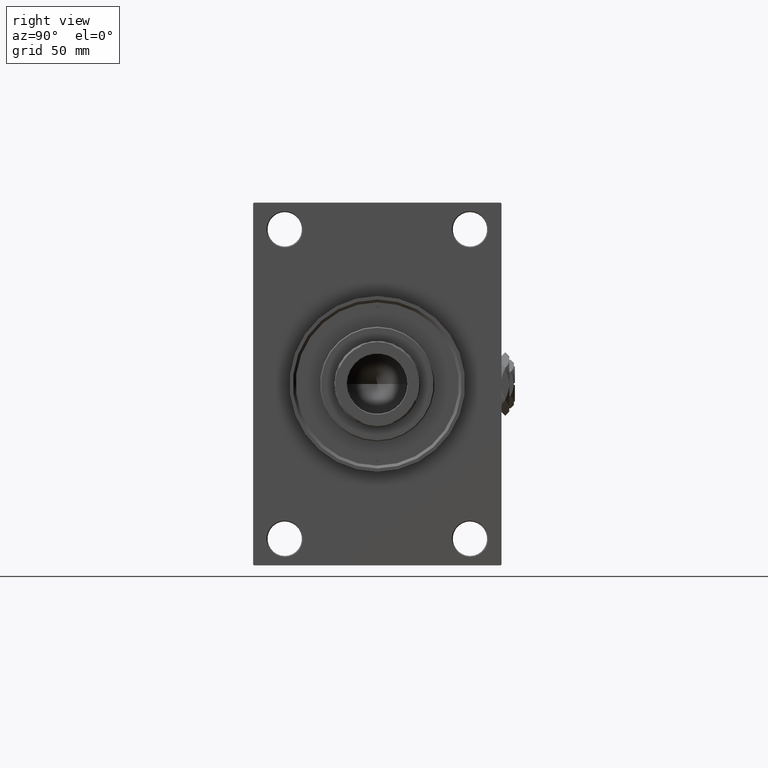
[diagram: clean part render]
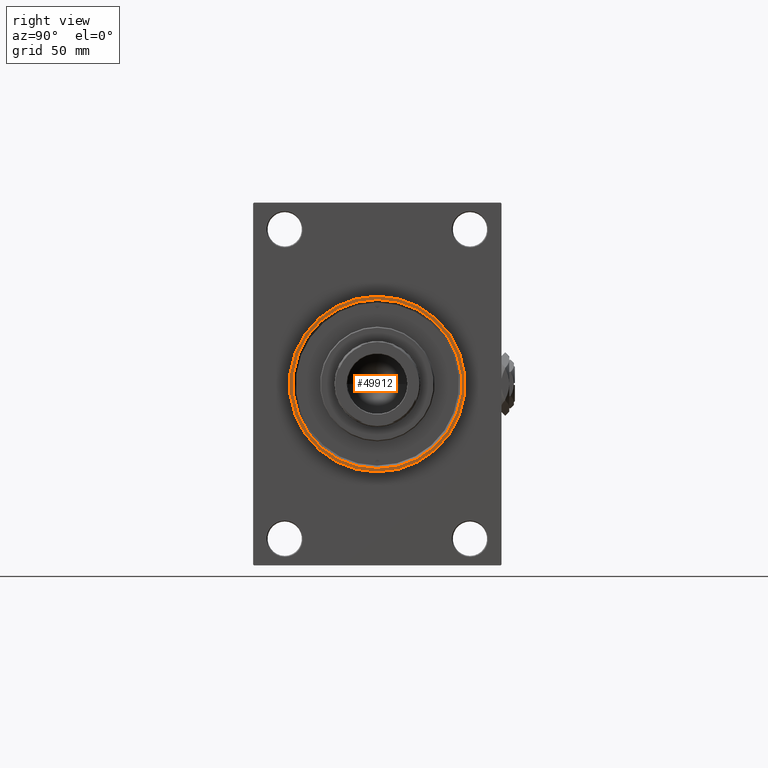
[diagram: same view with one face highlighted and labeled with its STEP entity id]
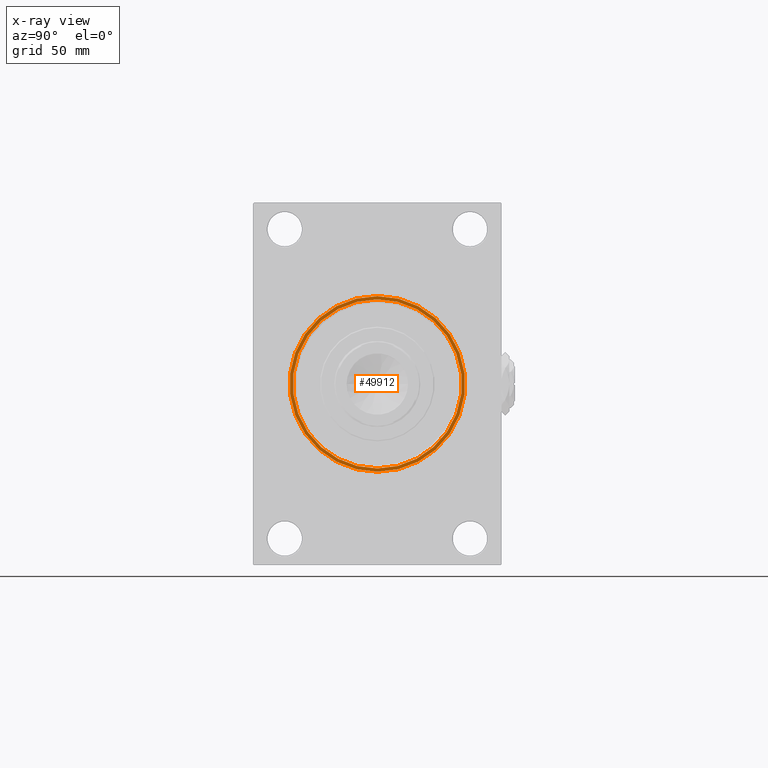
[diagram: x-ray of the same camera — body ghosted, the highlighted face saturated]
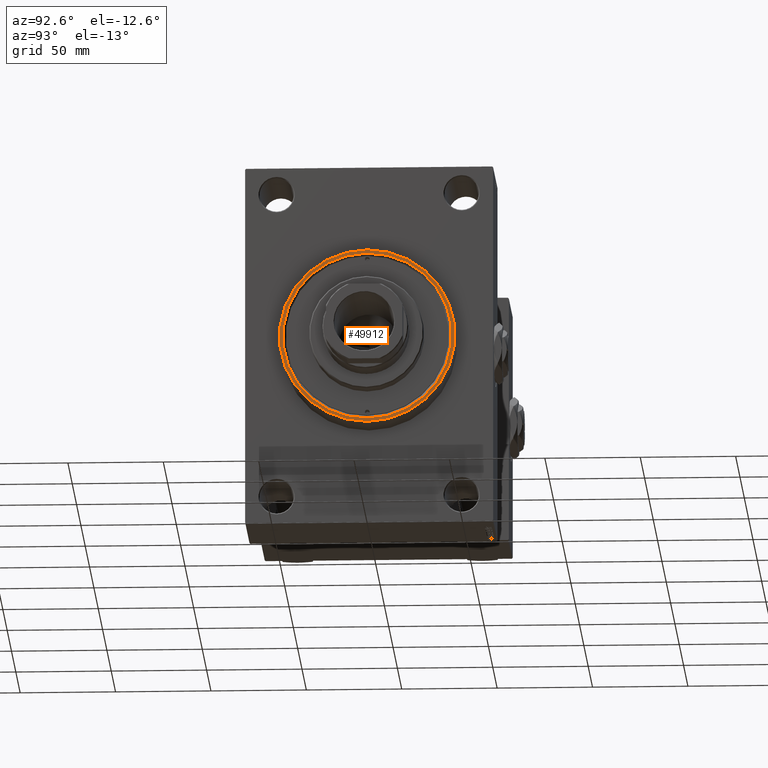
[diagram: same view with one face highlighted and labeled with its STEP entity id]
A machine part, right view. The second image highlights one B-rep face of the part: STEP entity #49912.
The next image is the same camera in x-ray: the body ghosted, the highlighted face saturated — about 0% of this face is hidden behind the body in this view.
A second angle (auxiliary view) of the same face is appended — the face is thin or edge-on in the first view.
In plain terms, the highlighted planar face has unit normal (1, 0, 0).
Its self-contained STEP definition (entity closure, byte-faithful):
#45 = DIRECTION ( 'NONE',  ( 1.000000000000000000, 0.000000000000000000, 0.000000000000000000 ) ) ;
#657 = EDGE_CURVE ( 'NONE', #39268, #28374, #45616, .T. ) ;
#1226 = CARTESIAN_POINT ( 'NONE',  ( 247.9999999999999716, 5.633375276077824704E-15, -46.00000000000000000 ) ) ;
#2595 = DIRECTION ( 'NONE',  ( -1.000000000000000000, -0.000000000000000000, -0.000000000000000000 ) ) ;
#3846 = DIRECTION ( 'NONE',  ( 0.000000000000000000, 0.000000000000000000, -1.000000000000000000 ) ) ;
#4172 = CARTESIAN_POINT ( 'NONE',  ( 247.9999999999999716, 0.000000000000000000, -44.24999999999998579 ) ) ;
#7150 = FACE_BOUND ( 'NONE', #36835, .T. ) ;
#7225 = DIRECTION ( 'NONE',  ( 0.000000000000000000, 0.000000000000000000, -1.000000000000000000 ) ) ;
#7786 = DIRECTION ( 'NONE',  ( 0.000000000000000000, 0.000000000000000000, -1.000000000000000000 ) ) ;
#8605 = ORIENTED_EDGE ( 'NONE', *, *, #40330, .T. ) ;
#9112 = AXIS2_PLACEMENT_3D ( 'NONE', #26385, #2595, #41796 ) ;
#10819 = EDGE_CURVE ( 'NONE', #48233, #21998, #43830, .T. ) ;
#14045 = CARTESIAN_POINT ( 'NONE',  ( 247.9999999999999716, 0.000000000000000000, 0.000000000000000000 ) ) ;
#14477 = CARTESIAN_POINT ( 'NONE',  ( 247.9999999999999716, 0.000000000000000000, 0.000000000000000000 ) ) ;
#16370 = CARTESIAN_POINT ( 'NONE',  ( 247.9999999999999716, 5.419062086227035828E-15, 44.24999999999998579 ) ) ;
#16487 = CIRCLE ( 'NONE', #43944, 46.00000000000000000 ) ;
#19005 = ORIENTED_EDGE ( 'NONE', *, *, #46498, .T. ) ;
#20600 = AXIS2_PLACEMENT_3D ( 'NONE', #27278, #30600, #7786 ) ;
#21389 = DIRECTION ( 'NONE',  ( 0.000000000000000000, 0.000000000000000000, -1.000000000000000000 ) ) ;
#21998 = VERTEX_POINT ( 'NONE', #16370 ) ;
#22579 = PLANE ( 'NONE',  #47420 ) ;
#26385 = CARTESIAN_POINT ( 'NONE',  ( 247.9999999999999716, 0.000000000000000000, 0.000000000000000000 ) ) ;
#26436 = AXIS2_PLACEMENT_3D ( 'NONE', #32550, #47940, #21389 ) ;
#27278 = CARTESIAN_POINT ( 'NONE',  ( 247.9999999999999716, 0.000000000000000000, 0.000000000000000000 ) ) ;
#27674 = ORIENTED_EDGE ( 'NONE', *, *, #657, .T. ) ;
#28374 = VERTEX_POINT ( 'NONE', #1226 ) ;
#29232 = EDGE_LOOP ( 'NONE', ( #27674, #8605 ) ) ;
#29667 = CIRCLE ( 'NONE', #26436, 44.24999999999998579 ) ;
#30600 = DIRECTION ( 'NONE',  ( 1.000000000000000000, 0.000000000000000000, 0.000000000000000000 ) ) ;
#32550 = CARTESIAN_POINT ( 'NONE',  ( 247.9999999999999716, 0.000000000000000000, 0.000000000000000000 ) ) ;
#34297 = DIRECTION ( 'NONE',  ( 1.000000000000000000, 0.000000000000000000, 0.000000000000000000 ) ) ;
#36835 = EDGE_LOOP ( 'NONE', ( #40430, #19005 ) ) ;
#39268 = VERTEX_POINT ( 'NONE', #40035 ) ;
#40035 = CARTESIAN_POINT ( 'NONE',  ( 247.9999999999999716, 0.000000000000000000, 46.00000000000000000 ) ) ;
#40330 = EDGE_CURVE ( 'NONE', #28374, #39268, #16487, .T. ) ;
#40430 = ORIENTED_EDGE ( 'NONE', *, *, #10819, .T. ) ;
#41796 = DIRECTION ( 'NONE',  ( 0.000000000000000000, 0.000000000000000000, -1.000000000000000000 ) ) ;
#42281 = FACE_OUTER_BOUND ( 'NONE', #29232, .T. ) ;
#43830 = CIRCLE ( 'NONE', #9112, 44.24999999999998579 ) ;
#43944 = AXIS2_PLACEMENT_3D ( 'NONE', #14045, #34297, #7225 ) ;
#45616 = CIRCLE ( 'NONE', #20600, 46.00000000000000000 ) ;
#46498 = EDGE_CURVE ( 'NONE', #21998, #48233, #29667, .T. ) ;
#47420 = AXIS2_PLACEMENT_3D ( 'NONE', #14477, #45, #3846 ) ;
#47940 = DIRECTION ( 'NONE',  ( -1.000000000000000000, -0.000000000000000000, -0.000000000000000000 ) ) ;
#48233 = VERTEX_POINT ( 'NONE', #4172 ) ;
#49912 = ADVANCED_FACE ( 'NONE', ( #7150, #42281 ), #22579, .T. ) ;